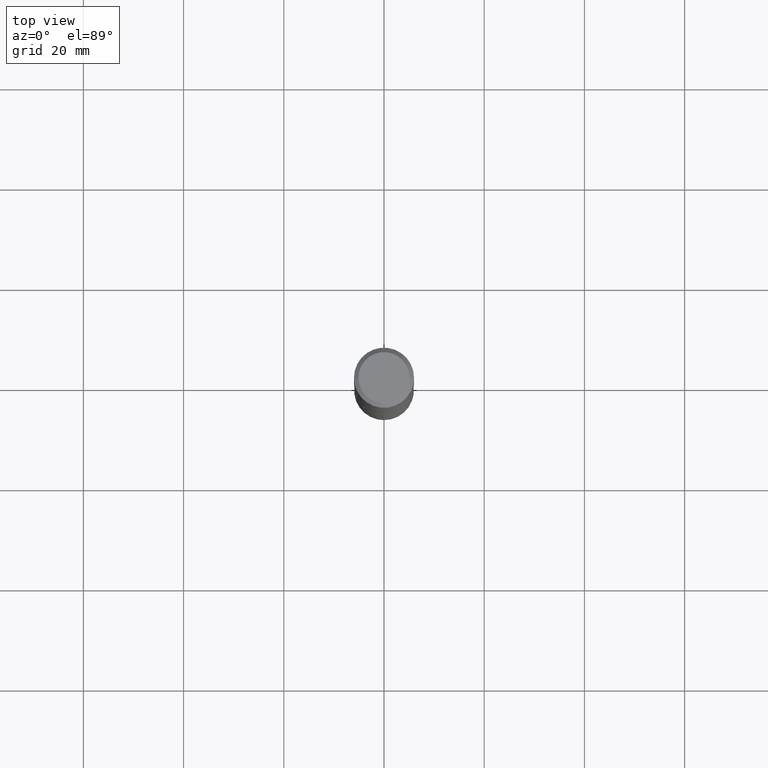
[diagram: clean part render]
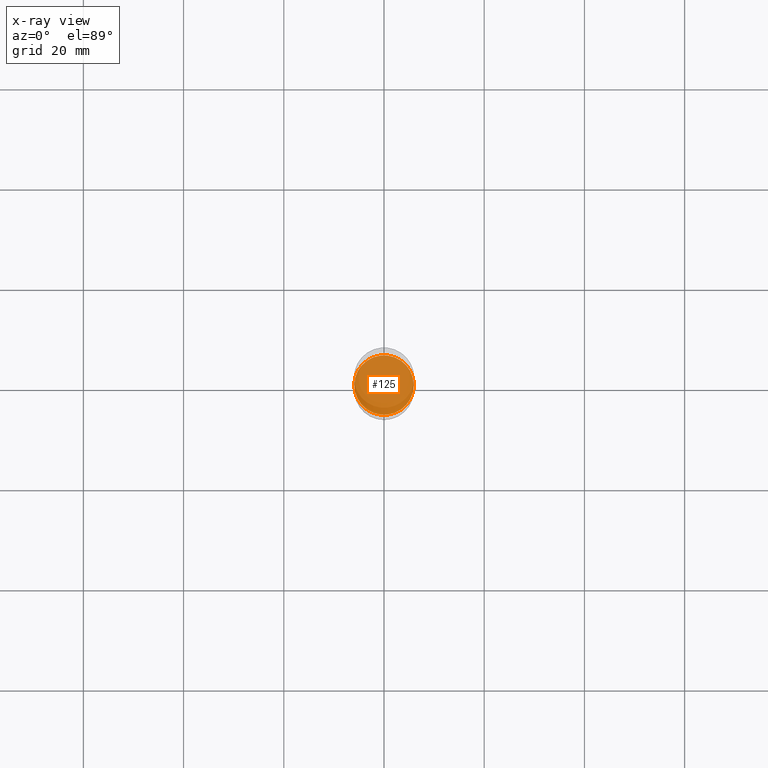
[diagram: x-ray — body ghosted, one internal face saturated and labeled with its STEP entity id]
A machine part, top view, then the same camera in x-ray: the body is ghosted and one INTERNAL B-rep face — a face not visible from any outside direction — is saturated and labeled: STEP entity #125.
In plain terms, the highlighted planar face has unit normal (-0, 0, 1).
Its self-contained STEP definition (entity closure, byte-faithful):
#24 = CARTESIAN_POINT ( 'NONE',  ( 0.2338999999999999968, -1.352425296600891747E-14, -3.405700000000000394 ) ) ;
#41 = DIRECTION ( 'NONE',  ( 1.000000000000000000, -6.982962677686263555E-15, 0.000000000000000000 ) ) ;
#68 = CARTESIAN_POINT ( 'NONE',  ( 8.328533113224721021E-29, -1.189093799569810036E-14, -3.405700000000000394 ) ) ;
#97 = AXIS2_PLACEMENT_3D ( 'NONE', #68, #445, #192 ) ;
#101 = VERTEX_POINT ( 'NONE', #206 ) ;
#121 = AXIS2_PLACEMENT_3D ( 'NONE', #181, #404, #41 ) ;
#125 = ADVANCED_FACE ( 'NONE', ( #350 ), #392, .F. ) ;
#153 = EDGE_LOOP ( 'NONE', ( #370, #174 ) ) ;
#164 = CIRCLE ( 'NONE', #121, 0.2338999999999999968 ) ;
#174 = ORIENTED_EDGE ( 'NONE', *, *, #349, .F. ) ;
#181 = CARTESIAN_POINT ( 'NONE',  ( 8.328533113224721021E-29, -1.189093799569810036E-14, -3.405700000000000394 ) ) ;
#192 = DIRECTION ( 'NONE',  ( 1.000000000000000000, -6.982962677686265922E-15, 4.876176775795935793E-29 ) ) ;
#198 = DIRECTION ( 'NONE',  ( -2.445468806185136597E-29, 3.491481338843145583E-15, 1.000000000000000000 ) ) ;
#206 = CARTESIAN_POINT ( 'NONE',  ( -0.2338999999999999968, -1.022632930958111563E-14, -3.405700000000000394 ) ) ;
#271 = CARTESIAN_POINT ( 'NONE',  ( 8.328533113224721021E-29, -1.189093799569810036E-14, -3.405700000000000394 ) ) ;
#273 = EDGE_CURVE ( 'NONE', #440, #101, #164, .T. ) ;
#330 = AXIS2_PLACEMENT_3D ( 'NONE', #271, #198, #418 ) ;
#337 = CIRCLE ( 'NONE', #330, 0.2338999999999999968 ) ;
#349 = EDGE_CURVE ( 'NONE', #101, #440, #337, .T. ) ;
#350 = FACE_OUTER_BOUND ( 'NONE', #153, .T. ) ;
#370 = ORIENTED_EDGE ( 'NONE', *, *, #273, .F. ) ;
#392 = PLANE ( 'NONE',  #97 ) ;
#404 = DIRECTION ( 'NONE',  ( -2.445468806185136597E-29, 3.491481338843145583E-15, 1.000000000000000000 ) ) ;
#418 = DIRECTION ( 'NONE',  ( 1.000000000000000000, -6.982962677686263555E-15, 0.000000000000000000 ) ) ;
#440 = VERTEX_POINT ( 'NONE', #24 ) ;
#445 = DIRECTION ( 'NONE',  ( -2.438088387897960049E-29, 3.491481338843145188E-15, 1.000000000000000000 ) ) ;